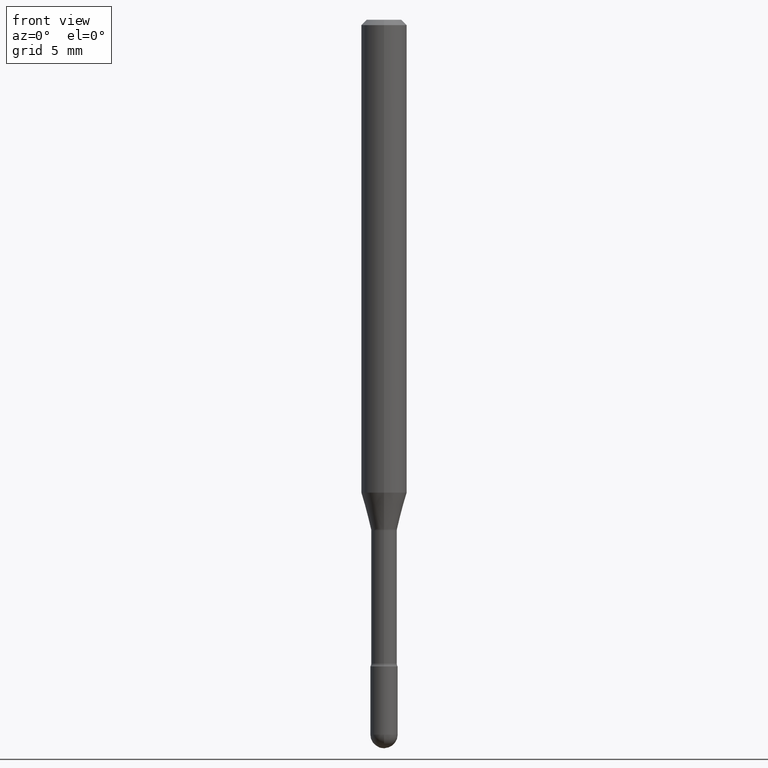
[diagram: clean part render]
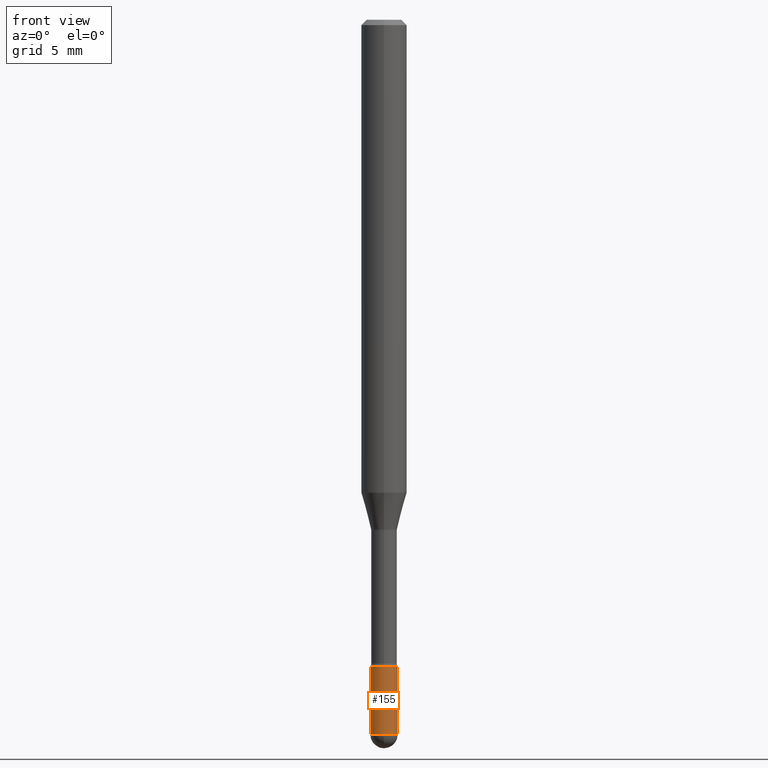
[diagram: same view with one face highlighted and labeled with its STEP entity id]
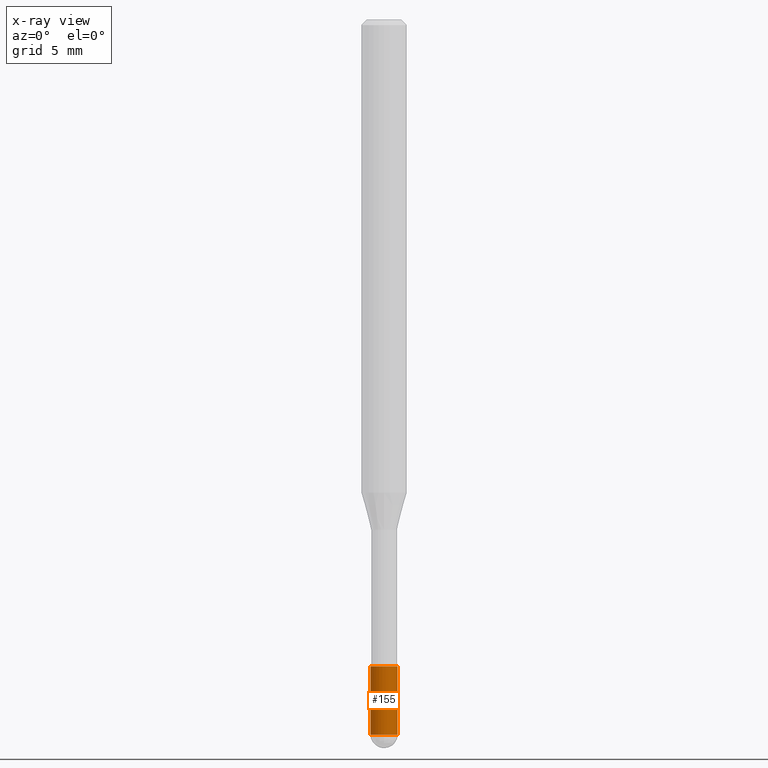
[diagram: x-ray of the same camera — body ghosted, the highlighted face saturated]
A machine part, front view. The second image highlights one B-rep face of the part: STEP entity #155.
The next image is the same camera in x-ray: the body ghosted, the highlighted face saturated — about 0% of this face is hidden behind the body in this view.
In plain terms, the highlighted cylindrical surface (edge-blend (fillet) strip) has radius 0.9525 mm, axis along (-0, 0, 1).
Its self-contained STEP definition (entity closure, byte-faithful):
#9 = ORIENTED_EDGE ( 'NONE', *, *, #80, .F. ) ;
#29 = CARTESIAN_POINT ( 'NONE',  ( 0.000000000000000000, 0.000000000000000000, 0.000000000000000000 ) ) ;
#52 = EDGE_CURVE ( 'NONE', #441, #561, #238, .T. ) ;
#56 = ORIENTED_EDGE ( 'NONE', *, *, #187, .T. ) ;
#72 = DIRECTION ( 'NONE',  ( 1.000000000000000000, -6.982962677686268288E-15, 0.000000000000000000 ) ) ;
#78 = CARTESIAN_POINT ( 'NONE',  ( 4.340707130978617347E-29, -6.197379376446583794E-15, -1.775000000000000133 ) ) ;
#80 = EDGE_CURVE ( 'NONE', #169, #294, #107, .T. ) ;
#81 = DIRECTION ( 'NONE',  ( 1.000000000000000000, -6.982962677686266711E-15, 4.876176775795935793E-29 ) ) ;
#107 = LINE ( 'NONE', #408, #151 ) ;
#110 = CARTESIAN_POINT ( 'NONE',  ( 0.03749999999999999861, -2.618611004132350016E-16, 1.828566290923475922E-30 ) ) ;
#120 = VECTOR ( 'NONE', #283, 39.37007874015748143 ) ;
#132 = DIRECTION ( 'NONE',  ( 1.000000000000000000, -6.982962677686268288E-15, 0.000000000000000000 ) ) ;
#151 = VECTOR ( 'NONE', #541, 39.37007874015748143 ) ;
#155 = ADVANCED_FACE ( 'NONE', ( #502 ), #289, .T. ) ;
#158 = DIRECTION ( 'NONE',  ( -2.445468806185136597E-29, 3.491481338843145583E-15, 1.000000000000000000 ) ) ;
#160 = LINE ( 'NONE', #110, #120 ) ;
#169 = VERTEX_POINT ( 'NONE', #459 ) ;
#174 = CARTESIAN_POINT ( 'NONE',  ( 0.03749999999999999861, -6.459240476859818795E-15, -1.775000000000000133 ) ) ;
#181 = ORIENTED_EDGE ( 'NONE', *, *, #183, .F. ) ;
#183 = EDGE_CURVE ( 'NONE', #294, #514, #297, .T. ) ;
#187 = EDGE_CURVE ( 'NONE', #561, #514, #160, .T. ) ;
#218 = CARTESIAN_POINT ( 'NONE',  ( -0.03749999999999999861, -6.258252226053091317E-15, -1.775000000000000133 ) ) ;
#219 = ORIENTED_EDGE ( 'NONE', *, *, #491, .T. ) ;
#222 = AXIS2_PLACEMENT_3D ( 'NONE', #78, #334, #463 ) ;
#238 = CIRCLE ( 'NONE', #276, 0.03749999999999999861 ) ;
#276 = AXIS2_PLACEMENT_3D ( 'NONE', #351, #518, #132 ) ;
#283 = DIRECTION ( 'NONE',  ( -2.445468806185136877E-29, 3.491481338843145188E-15, 1.000000000000000000 ) ) ;
#287 = ORIENTED_EDGE ( 'NONE', *, *, #52, .T. ) ;
#289 = CYLINDRICAL_SURFACE ( 'NONE', #547, 0.03749999999999999861 ) ;
#294 = VERTEX_POINT ( 'NONE', #218 ) ;
#297 = CIRCLE ( 'NONE', #222, 0.03749999999999999861 ) ;
#322 = CIRCLE ( 'NONE', #384, 0.03749999999999999861 ) ;
#325 = CARTESIAN_POINT ( 'NONE',  ( -2.664535259099897351E-16, -0.03750000000000687506, -1.962499999999999689 ) ) ;
#332 = CARTESIAN_POINT ( 'NONE',  ( 4.799232532138329338E-29, -6.852032127479672087E-15, -1.962499999999999689 ) ) ;
#334 = DIRECTION ( 'NONE',  ( -2.445468806185136597E-29, 3.491481338843145583E-15, 1.000000000000000000 ) ) ;
#351 = CARTESIAN_POINT ( 'NONE',  ( 4.799232532138329338E-29, -6.852032127479672087E-15, -1.962499999999999689 ) ) ;
#355 = CARTESIAN_POINT ( 'NONE',  ( 0.03749999999999999861, -6.786566852376363731E-15, -1.962499999999999689 ) ) ;
#384 = AXIS2_PLACEMENT_3D ( 'NONE', #332, #548, #72 ) ;
#408 = CARTESIAN_POINT ( 'NONE',  ( -0.03749999999999999861, 2.664535259100375598E-16, -1.844600658845589808E-30 ) ) ;
#441 = VERTEX_POINT ( 'NONE', #325 ) ;
#459 = CARTESIAN_POINT ( 'NONE',  ( -0.03749999999999999861, -6.258252226053091317E-15, -1.962499999999999689 ) ) ;
#463 = DIRECTION ( 'NONE',  ( 1.000000000000000000, -6.982962677686268288E-15, 0.000000000000000000 ) ) ;
#465 = EDGE_LOOP ( 'NONE', ( #9, #219, #287, #56, #181 ) ) ;
#491 = EDGE_CURVE ( 'NONE', #169, #441, #322, .T. ) ;
#502 = FACE_OUTER_BOUND ( 'NONE', #465, .T. ) ;
#514 = VERTEX_POINT ( 'NONE', #174 ) ;
#518 = DIRECTION ( 'NONE',  ( -2.445468806185136597E-29, 3.491481338843145583E-15, 1.000000000000000000 ) ) ;
#541 = DIRECTION ( 'NONE',  ( -2.445468806185136877E-29, 3.491481338843145188E-15, 1.000000000000000000 ) ) ;
#547 = AXIS2_PLACEMENT_3D ( 'NONE', #29, #158, #81 ) ;
#548 = DIRECTION ( 'NONE',  ( -2.445468806185136597E-29, 3.491481338843145583E-15, 1.000000000000000000 ) ) ;
#561 = VERTEX_POINT ( 'NONE', #355 ) ;